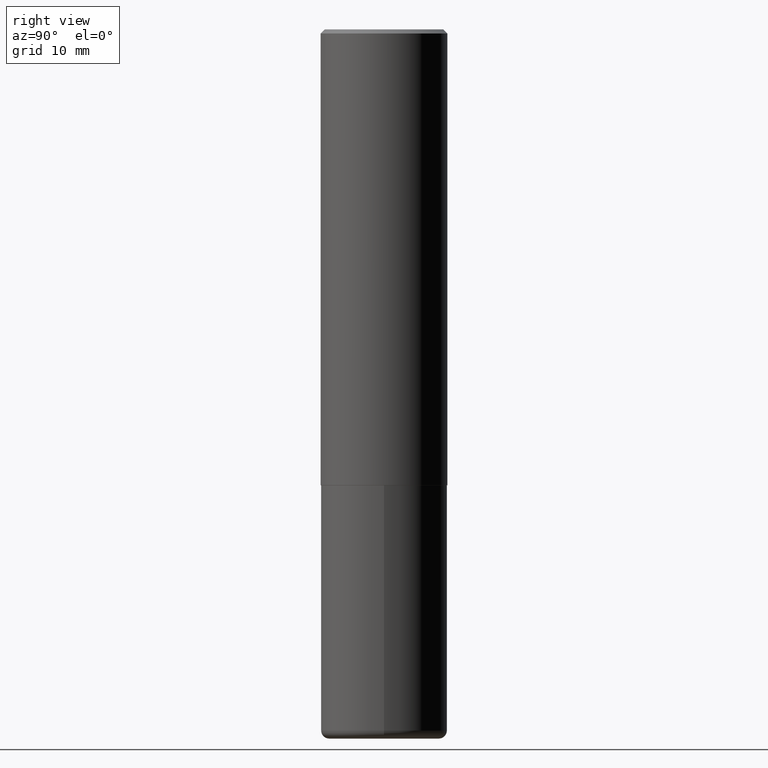
[diagram: clean part render]
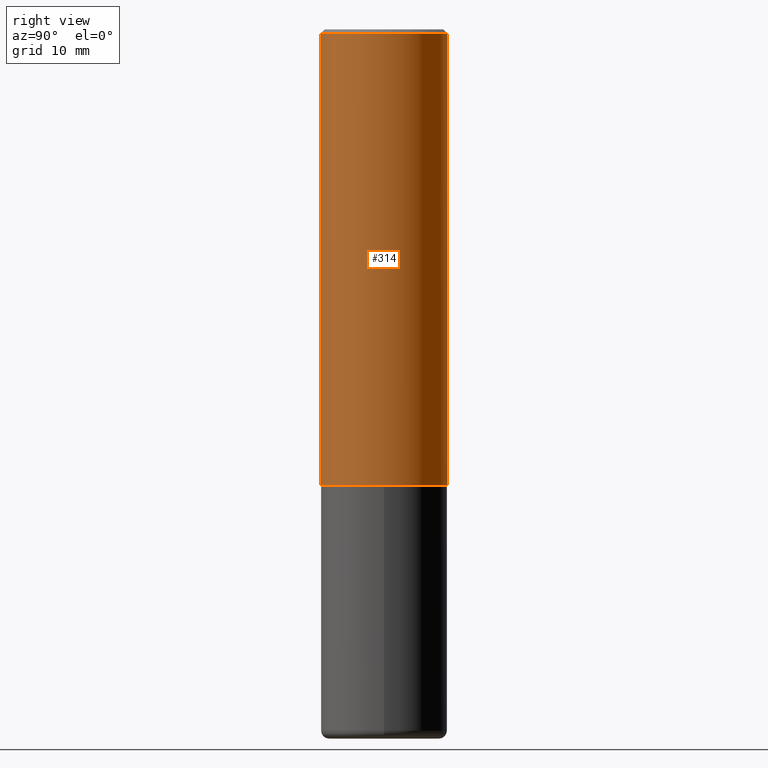
[diagram: same view with one face highlighted and labeled with its STEP entity id]
A machine part, right view. The second image highlights one B-rep face of the part: STEP entity #314.
In plain terms, the highlighted cylindrical surface (partial cylindrical patch) has radius 7.9375 mm, axis along (-0, 0, 1).
Its self-contained STEP definition (entity closure, byte-faithful):
#1 = CYLINDRICAL_SURFACE ( 'NONE', #195, 0.3125000000000002220 ) ;
#6 = CIRCLE ( 'NONE', #371, 0.3125000000000001665 ) ;
#55 = DIRECTION ( 'NONE',  ( -6.982962677686265922E-15, -1.000000000000000000, 3.491561398894740027E-15 ) ) ;
#61 = DIRECTION ( 'NONE',  ( -6.982962677686265133E-15, -1.000000000000000000, 3.496765431890254947E-15 ) ) ;
#63 = EDGE_CURVE ( 'NONE', #70, #179, #207, .T. ) ;
#70 = VERTEX_POINT ( 'NONE', #128 ) ;
#82 = EDGE_LOOP ( 'NONE', ( #281, #250, #249, #307 ) ) ;
#105 = CARTESIAN_POINT ( 'NONE',  ( 2.182175836776959530E-15, 0.3125000000000000555, -0.02000000000000116615 ) ) ;
#107 = CARTESIAN_POINT ( 'NONE',  ( -2.143905624303604008E-15, -0.3125000000000002220, -0.01999999999999898040 ) ) ;
#113 = VECTOR ( 'NONE', #418, 39.37007874015748143 ) ;
#115 = EDGE_CURVE ( 'NONE', #179, #175, #287, .T. ) ;
#122 = EDGE_CURVE ( 'NONE', #70, #344, #123, .T. ) ;
#123 = LINE ( 'NONE', #255, #316 ) ;
#128 = CARTESIAN_POINT ( 'NONE',  ( -2.182175836776905099E-15, -0.3125000000000081601, -2.248999999999998778 ) ) ;
#158 = FACE_OUTER_BOUND ( 'NONE', #82, .T. ) ;
#175 = VERTEX_POINT ( 'NONE', #105 ) ;
#179 = VERTEX_POINT ( 'NONE', #239 ) ;
#188 = DIRECTION ( 'NONE',  ( -6.982962677686265922E-15, -1.000000000000000000, 3.496765431890253764E-15 ) ) ;
#191 = DIRECTION ( 'NONE',  ( -2.445412900549910575E-29, 3.491561398894740027E-15, 1.000000000000000000 ) ) ;
#195 = AXIS2_PLACEMENT_3D ( 'NONE', #213, #340, #55 ) ;
#207 = CIRCLE ( 'NONE', #265, 0.3125000000000002776 ) ;
#213 = CARTESIAN_POINT ( 'NONE',  ( 0.000000000000000000, 0.000000000000000000, 0.000000000000000000 ) ) ;
#239 = CARTESIAN_POINT ( 'NONE',  ( 2.220446049250342269E-15, 0.3124999999999924505, -2.249000000000000998 ) ) ;
#249 = ORIENTED_EDGE ( 'NONE', *, *, #354, .F. ) ;
#250 = ORIENTED_EDGE ( 'NONE', *, *, #115, .T. ) ;
#255 = CARTESIAN_POINT ( 'NONE',  ( -2.182175836776959530E-15, -0.3125000000000002220, 1.091112937154607072E-15 ) ) ;
#260 = CARTESIAN_POINT ( 'NONE',  ( 5.499733613336748778E-29, -7.852521586114269735E-15, -2.248999999999999666 ) ) ;
#265 = AXIS2_PLACEMENT_3D ( 'NONE', #260, #191, #188 ) ;
#281 = ORIENTED_EDGE ( 'NONE', *, *, #63, .T. ) ;
#287 = LINE ( 'NONE', #347, #113 ) ;
#291 = DIRECTION ( 'NONE',  ( -2.445412900549910575E-29, 3.491561398894739632E-15, 1.000000000000000000 ) ) ;
#307 = ORIENTED_EDGE ( 'NONE', *, *, #122, .F. ) ;
#314 = ADVANCED_FACE ( 'NONE', ( #158 ), #1, .T. ) ;
#316 = VECTOR ( 'NONE', #291, 39.37007874015748143 ) ;
#333 = DIRECTION ( 'NONE',  ( -2.445412900549910575E-29, 3.491561398894740027E-15, 1.000000000000000000 ) ) ;
#340 = DIRECTION ( 'NONE',  ( -2.445412900549910575E-29, 3.491561398894740027E-15, 1.000000000000000000 ) ) ;
#344 = VERTEX_POINT ( 'NONE', #107 ) ;
#346 = CARTESIAN_POINT ( 'NONE',  ( 4.890825801099838597E-31, -6.983122797789506086E-17, -0.02000000000000007327 ) ) ;
#347 = CARTESIAN_POINT ( 'NONE',  ( 2.220446049250314264E-15, 0.3125000000000002220, -1.091112937154607072E-15 ) ) ;
#354 = EDGE_CURVE ( 'NONE', #344, #175, #6, .T. ) ;
#371 = AXIS2_PLACEMENT_3D ( 'NONE', #346, #333, #61 ) ;
#418 = DIRECTION ( 'NONE',  ( -2.445412900549910575E-29, 3.491561398894739632E-15, 1.000000000000000000 ) ) ;